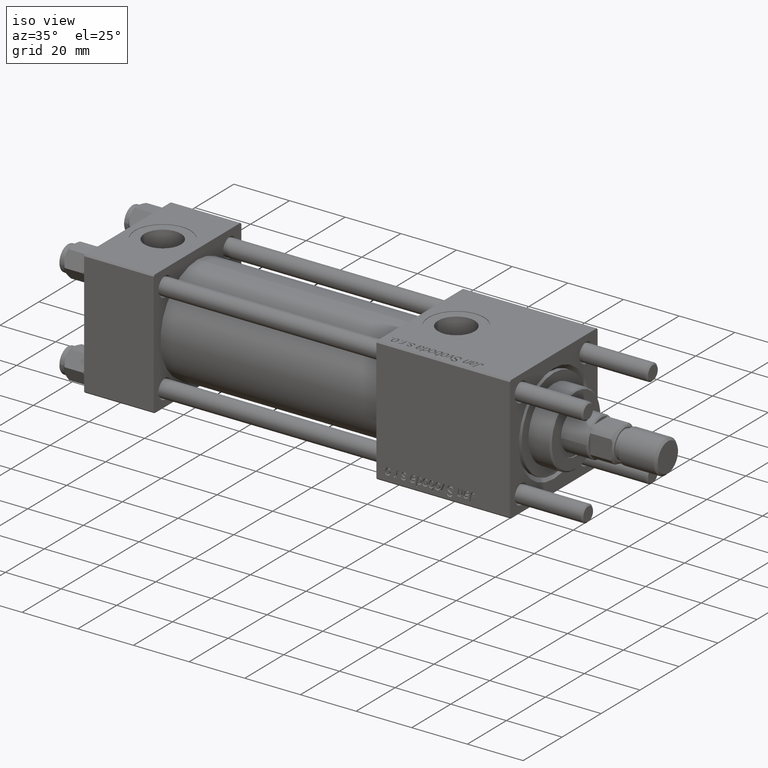
[diagram: clean part render]
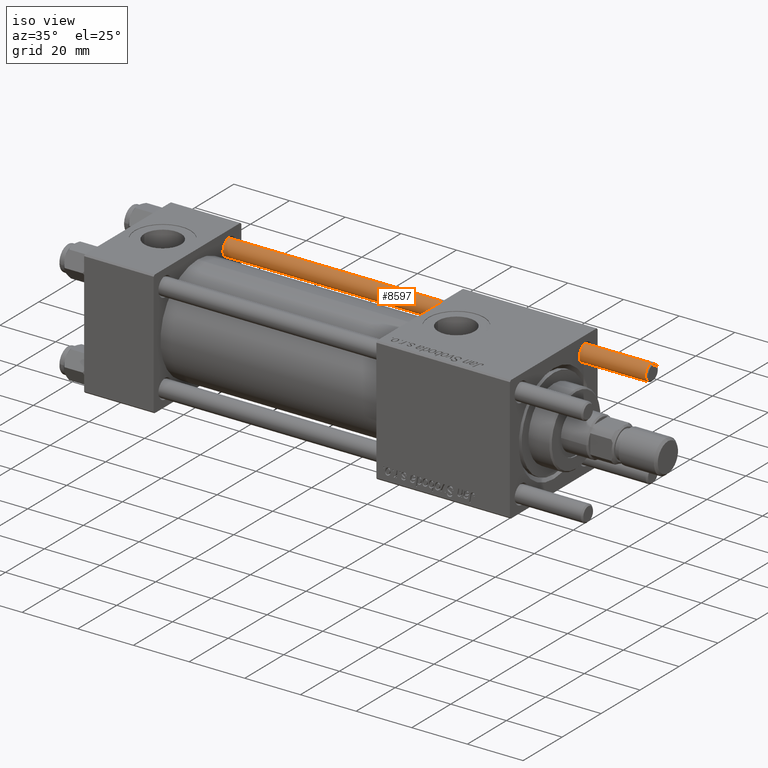
[diagram: same view with one face highlighted and labeled with its STEP entity id]
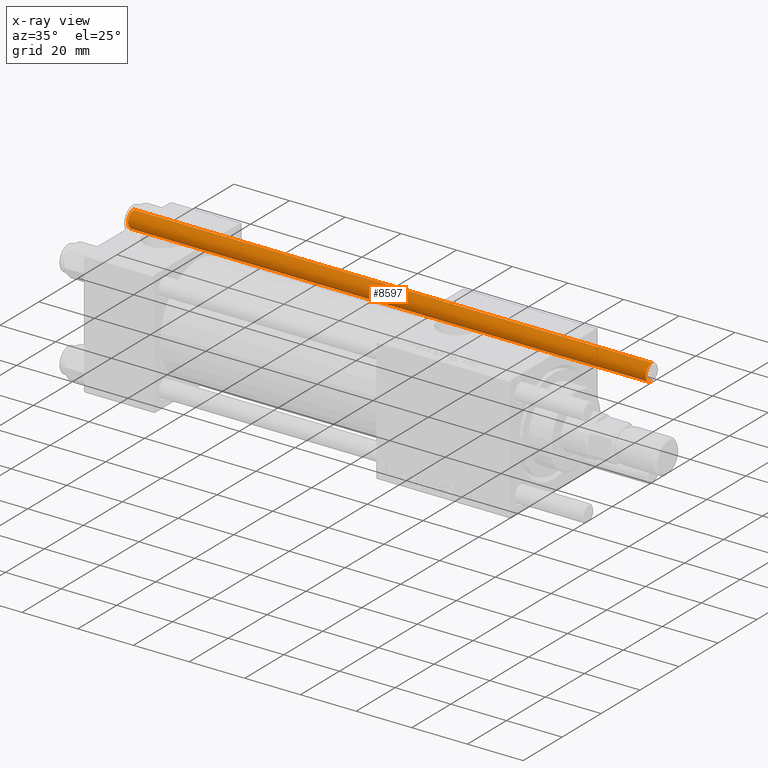
[diagram: x-ray of the same camera — body ghosted, the highlighted face saturated]
A machine part, iso view. The second image highlights one B-rep face of the part: STEP entity #8597.
The next image is the same camera in x-ray: the body ghosted, the highlighted face saturated — about 0% of this face is hidden behind the body in this view.
In plain terms, the highlighted cylindrical surface (edge-blend (fillet) strip) has radius 3 mm, axis along (1, -0, -0).
Its self-contained STEP definition (entity closure, byte-faithful):
#518 = DIRECTION ( 'NONE',  ( -0.000000000000000000, -0.000000000000000000, 1.000000000000000000 ) ) ;
#1577 = ORIENTED_EDGE ( 'NONE', *, *, #7298, .T. ) ;
#3591 = FACE_OUTER_BOUND ( 'NONE', #18199, .T. ) ;
#5572 = CARTESIAN_POINT ( 'NONE',  ( -3.000000000000000444, 0.000000000000000000, 186.5000000000000568 ) ) ;
#6567 = EDGE_CURVE ( 'NONE', #39277, #21914, #44376, .T. ) ;
#7298 = EDGE_CURVE ( 'NONE', #19630, #10716, #53484, .T. ) ;
#8069 = DIRECTION ( 'NONE',  ( -0.000000000000000000, -0.000000000000000000, -1.000000000000000000 ) ) ;
#8260 = DIRECTION ( 'NONE',  ( 1.000000000000000000, 0.000000000000000000, 0.000000000000000000 ) ) ;
#8597 = ADVANCED_FACE ( 'NONE', ( #3591 ), #48655, .T. ) ;
#9899 = ORIENTED_EDGE ( 'NONE', *, *, #30583, .T. ) ;
#10716 = VERTEX_POINT ( 'NONE', #35321 ) ;
#13130 = AXIS2_PLACEMENT_3D ( 'NONE', #18721, #518, #27391 ) ;
#13453 = CARTESIAN_POINT ( 'NONE',  ( 3.000000000000000444, 3.673940397442060361E-16, 0.5000000000000281997 ) ) ;
#15016 = CIRCLE ( 'NONE', #13130, 3.000000000000000444 ) ;
#16624 = CARTESIAN_POINT ( 'NONE',  ( 0.000000000000000000, 0.000000000000000000, 186.5000000000000568 ) ) ;
#17384 = ORIENTED_EDGE ( 'NONE', *, *, #6567, .F. ) ;
#18199 = EDGE_LOOP ( 'NONE', ( #17384, #25624, #1577, #9899 ) ) ;
#18721 = CARTESIAN_POINT ( 'NONE',  ( 0.000000000000000000, 0.000000000000000000, 0.5000000000000281997 ) ) ;
#19630 = VERTEX_POINT ( 'NONE', #5572 ) ;
#21914 = VERTEX_POINT ( 'NONE', #13453 ) ;
#23150 = AXIS2_PLACEMENT_3D ( 'NONE', #16624, #34833, #8260 ) ;
#23834 = CARTESIAN_POINT ( 'NONE',  ( 3.000000000000000444, 3.673940397442060361E-16, 186.5000000000000568 ) ) ;
#25624 = ORIENTED_EDGE ( 'NONE', *, *, #49652, .T. ) ;
#26191 = CARTESIAN_POINT ( 'NONE',  ( 3.000000000000000444, 3.673940397442060361E-16, 187.0000000000000000 ) ) ;
#27391 = DIRECTION ( 'NONE',  ( 1.000000000000000000, 0.000000000000000000, 0.000000000000000000 ) ) ;
#30077 = DIRECTION ( 'NONE',  ( -0.000000000000000000, -0.000000000000000000, -1.000000000000000000 ) ) ;
#30583 = EDGE_CURVE ( 'NONE', #10716, #21914, #15016, .T. ) ;
#34338 = CARTESIAN_POINT ( 'NONE',  ( 0.000000000000000000, 0.000000000000000000, 187.0000000000000000 ) ) ;
#34833 = DIRECTION ( 'NONE',  ( 0.000000000000000000, 0.000000000000000000, -1.000000000000000000 ) ) ;
#35321 = CARTESIAN_POINT ( 'NONE',  ( -3.000000000000000444, 0.000000000000000000, 0.5000000000000281997 ) ) ;
#39277 = VERTEX_POINT ( 'NONE', #23834 ) ;
#39327 = AXIS2_PLACEMENT_3D ( 'NONE', #34338, #8069, #48070 ) ;
#41202 = VECTOR ( 'NONE', #48713, 1000.000000000000000 ) ;
#42108 = VECTOR ( 'NONE', #30077, 1000.000000000000000 ) ;
#44376 = LINE ( 'NONE', #26191, #42108 ) ;
#48070 = DIRECTION ( 'NONE',  ( -1.000000000000000000, 0.000000000000000000, 0.000000000000000000 ) ) ;
#48655 = CYLINDRICAL_SURFACE ( 'NONE', #39327, 3.000000000000000444 ) ;
#48713 = DIRECTION ( 'NONE',  ( -0.000000000000000000, -0.000000000000000000, -1.000000000000000000 ) ) ;
#49652 = EDGE_CURVE ( 'NONE', #39277, #19630, #58353, .T. ) ;
#52322 = CARTESIAN_POINT ( 'NONE',  ( -3.000000000000000444, 0.000000000000000000, 187.0000000000000000 ) ) ;
#53484 = LINE ( 'NONE', #52322, #41202 ) ;
#58353 = CIRCLE ( 'NONE', #23150, 3.000000000000000444 ) ;